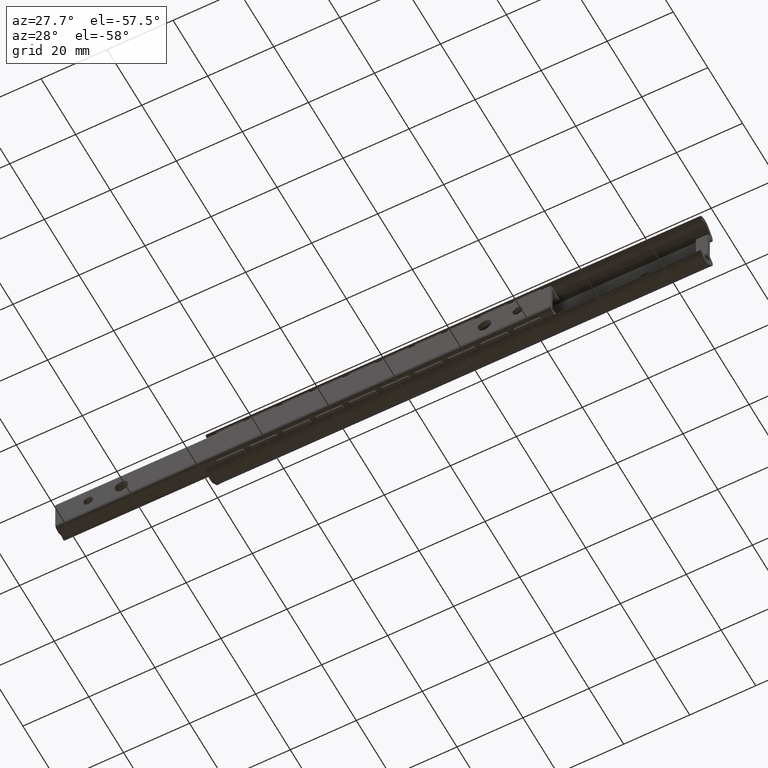
[diagram: clean part render]
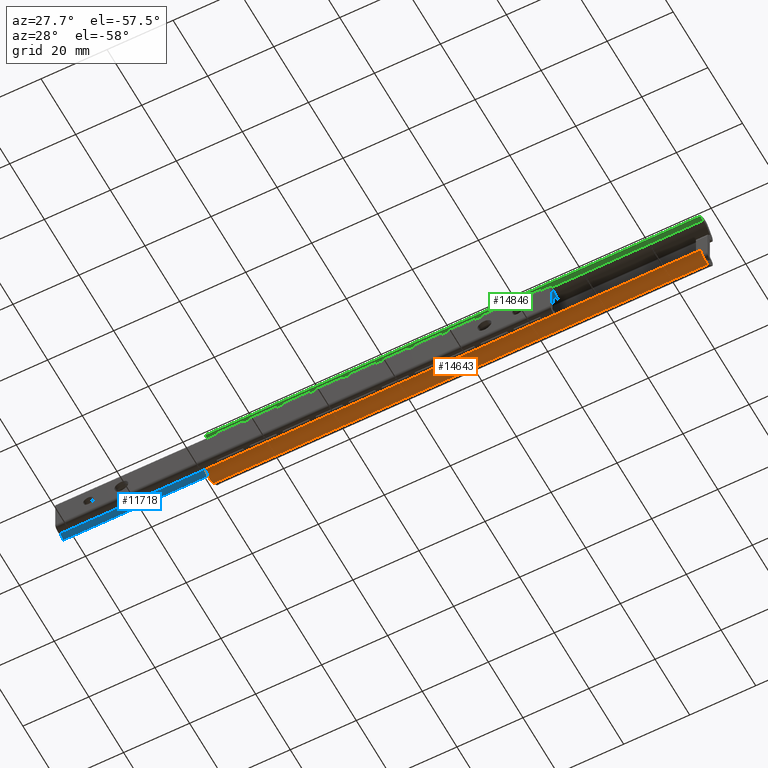
[diagram: same view with three faces highlighted in distinct colors, each labeled with its STEP entity id]
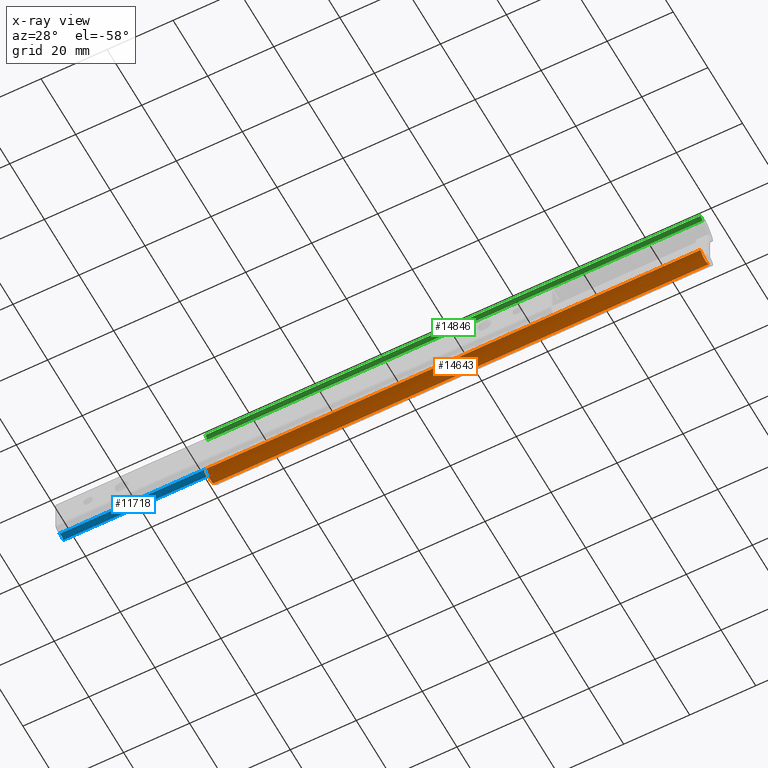
[diagram: x-ray of the same camera — body ghosted, the three highlighted faces saturated]
A machine part, auxiliary view with three faces highlighted in distinct colors.
The next image is the same camera in x-ray (body ghosted, the three faces saturated) — at least one of them is partly hidden behind the body in this view.
Their STEP definitions:

[orange] entity #14643 — the highlighted face is a freeform B-spline surface patch.
#12807=CARTESIAN_POINT('',(150.0,-7.078071239486619,-8.522037986978919));
#12808=VERTEX_POINT('',#12807);
#12814=CARTESIAN_POINT('',(150.0,-2.466980000000175,-9.201561000000000));
#12815=VERTEX_POINT('',#12814);
#12816=CARTESIAN_POINT('',(150.0,-7.078071239486623,-8.522037986978919));
#12817=CARTESIAN_POINT('',(150.000000000000060,-6.353743143967781,-9.759084982229698));
#12818=CARTESIAN_POINT('',(150.0,-4.935554901319296,-9.968079161169062));
#12819=CARTESIAN_POINT('',(150.000000000000060,-3.517366658670809,-10.177073340108425));
#12820=CARTESIAN_POINT('',(150.0,-2.466980000000175,-9.201561000000000));
#12828=(BOUNDED_CURVE()B_SPLINE_CURVE(2,(#12816,#12817,#12818,#12819,#12820),.UNSPECIFIED.,.F.,.U.)B_SPLINE_CURVE_WITH_KNOTS((3,2,3),(0.0,0.500000000000000,1.0),.UNSPECIFIED.)CURVE()GEOMETRIC_REPRESENTATION_ITEM()RATIONAL_B_SPLINE_CURVE((1.0,0.901581331480265,1.0,0.901581331480265,1.0))REPRESENTATION_ITEM(''));
#12829=EDGE_CURVE('',#12808,#12815,#12828,.T.);
#13671=CARTESIAN_POINT('',(0.0,-2.466980000000175,-9.201561000000000));
#13672=VERTEX_POINT('',#13671);
#13678=CARTESIAN_POINT('',(0.0,-7.078071239486619,-8.522037986978919));
#13679=VERTEX_POINT('',#13678);
#13680=CARTESIAN_POINT('',(0.0,-7.078071239486623,-8.522037986978919));
#13681=CARTESIAN_POINT('',(0.0,-6.353743143967781,-9.759084982229698));
#13682=CARTESIAN_POINT('',(0.0,-4.935554901319296,-9.968079161169062));
#13683=CARTESIAN_POINT('',(0.0,-3.517366658670809,-10.177073340108425));
#13684=CARTESIAN_POINT('',(0.0,-2.466980000000175,-9.201561000000000));
#13692=(BOUNDED_CURVE()B_SPLINE_CURVE(2,(#13680,#13681,#13682,#13683,#13684),.UNSPECIFIED.,.F.,.U.)B_SPLINE_CURVE_WITH_KNOTS((3,2,3),(0.0,0.500000000000000,1.0),.UNSPECIFIED.)CURVE()GEOMETRIC_REPRESENTATION_ITEM()RATIONAL_B_SPLINE_CURVE((1.0,0.901581331480265,1.0,0.901581331480265,1.0))REPRESENTATION_ITEM(''));
#13693=EDGE_CURVE('',#13679,#13672,#13692,.T.);
#14608=CARTESIAN_POINT('',(150.0,-7.078071239486619,-8.522037986978919));
#14609=CARTESIAN_POINT('',(0.0,-7.078071239486619,-8.522037986978919));
#14610=QUASI_UNIFORM_CURVE('',1,(#14608,#14609),.UNSPECIFIED.,.F.,.U.);
#14611=EDGE_CURVE('',#12808,#13679,#14610,.T.);
#14619=CARTESIAN_POINT('',(153.750000000000000,-7.128361483693322,-8.432666244155140));
#14620=CARTESIAN_POINT('',(-3.843750000000000,-7.128361483693322,-8.432666244155140));
#14621=CARTESIAN_POINT('',(153.750000000000000,-5.139968390697791,-12.112669090005582));
#14622=CARTESIAN_POINT('',(-3.843750000000000,-5.139968390697791,-12.112669090005582));
#14623=CARTESIAN_POINT('',(153.749999999999970,-2.304003409688435,-9.038025913272987));
#14624=CARTESIAN_POINT('',(-3.843750000000000,-2.304003409688435,-9.038025913272987));
#14632=(BOUNDED_SURFACE()B_SPLINE_SURFACE(1,2,((#14619,#14621,#14623),(#14620,#14622,#14624)),.UNSPECIFIED.,.F.,.F.,.U.)B_SPLINE_SURFACE_WITH_KNOTS((2,2),(3,3),(0.0,157.593750000000000),(0.0,6.149971916769982),.UNSPECIFIED.)GEOMETRIC_REPRESENTATION_ITEM()RATIONAL_B_SPLINE_SURFACE(((1.0,0.581021895955603,0.999362604717430),(1.0,0.581021895955603,0.999362604717430)))REPRESENTATION_ITEM('')SURFACE());
#14633=CARTESIAN_POINT('',(150.0,-2.466980000000175,-9.201561000000000));
#14634=CARTESIAN_POINT('',(0.0,-2.466980000000175,-9.201561000000000));
#14635=QUASI_UNIFORM_CURVE('',1,(#14633,#14634),.UNSPECIFIED.,.F.,.U.);
#14636=EDGE_CURVE('',#12815,#13672,#14635,.T.);
#14637=ORIENTED_EDGE('',*,*,#14636,.F.);
#14638=ORIENTED_EDGE('',*,*,#12829,.F.);
#14639=ORIENTED_EDGE('',*,*,#14611,.T.);
#14640=ORIENTED_EDGE('',*,*,#13693,.T.);
#14641=EDGE_LOOP('',(#14637,#14638,#14639,#14640));
#14642=FACE_OUTER_BOUND('',#14641,.T.);
#14643=ADVANCED_FACE('',(#14642),#14632,.T.);

[blue] entity #11718 — the highlighted face is a freeform B-spline surface patch.
#11327=CARTESIAN_POINT('',(-45.0,-3.360986249243195,-5.906695349265091));
#11328=VERTEX_POINT('',#11327);
#11334=CARTESIAN_POINT('',(-45.0,-5.520770942139200,-5.796694532959880));
#11335=VERTEX_POINT('',#11334);
#11336=CARTESIAN_POINT('',(-45.0,-3.360986249243200,-5.906695349265096));
#11337=CARTESIAN_POINT('',(-45.000000000000007,-4.389711933932812,-4.847075370420143));
#11338=CARTESIAN_POINT('',(-45.0,-5.520770942139206,-5.796694532959872));
#11346=(BOUNDED_CURVE()B_SPLINE_CURVE(2,(#11336,#11337,#11338),.UNSPECIFIED.,.F.,.U.)CURVE()GEOMETRIC_REPRESENTATION_ITEM()QUASI_UNIFORM_CURVE()RATIONAL_B_SPLINE_CURVE((1.0,0.732163559787559,1.0))REPRESENTATION_ITEM(''));
#11347=EDGE_CURVE('',#11328,#11335,#11346,.T.);
#11459=CARTESIAN_POINT('',(105.0,-5.520770559995840,-5.796694574426910));
#11460=VERTEX_POINT('',#11459);
#11476=CARTESIAN_POINT('',(105.0,-3.360986249243205,-5.906695349265091));
#11477=VERTEX_POINT('',#11476);
#11478=CARTESIAN_POINT('',(105.0,-3.360986249243205,-5.906695349265091));
#11479=CARTESIAN_POINT('',(105.0,-4.389711761106835,-4.847075548436372));
#11480=CARTESIAN_POINT('',(105.0,-5.520770559995840,-5.796694574426910));
#11488=(BOUNDED_CURVE()B_SPLINE_CURVE(2,(#11478,#11479,#11480),.UNSPECIFIED.,.F.,.U.)CURVE()GEOMETRIC_REPRESENTATION_ITEM()QUASI_UNIFORM_CURVE()RATIONAL_B_SPLINE_CURVE((1.0,0.732163616853390,1.0))REPRESENTATION_ITEM(''));
#11489=EDGE_CURVE('',#11477,#11460,#11488,.T.);
#11683=CARTESIAN_POINT('',(105.0,-3.360986249243205,-5.906695349265091));
#11684=CARTESIAN_POINT('',(-45.0,-3.360986249243195,-5.906695349265091));
#11685=QUASI_UNIFORM_CURVE('',1,(#11683,#11684),.UNSPECIFIED.,.F.,.U.);
#11686=EDGE_CURVE('',#11477,#11328,#11685,.T.);
#11694=CARTESIAN_POINT('',(108.750000000000000,-3.329876933734269,-5.939668112054416));
#11695=CARTESIAN_POINT('',(-48.843750000000007,-3.329876933734269,-5.939668112054416));
#11696=CARTESIAN_POINT('',(108.750000000000000,-4.428962981576579,-4.740909992686717));
#11697=CARTESIAN_POINT('',(-48.843750000000014,-4.428962981576579,-4.740909992686717));
#11698=CARTESIAN_POINT('',(108.749999999999960,-5.600803188930652,-5.868651850444940));
#11699=CARTESIAN_POINT('',(-48.843750000000007,-5.600803188930652,-5.868651850444940));
#11707=(BOUNDED_SURFACE()B_SPLINE_SURFACE(1,2,((#11694,#11696,#11698),(#11695,#11697,#11699)),.UNSPECIFIED.,.F.,.F.,.U.)B_SPLINE_SURFACE_WITH_KNOTS((2,2),(3,3),(0.0,157.593750000000000),(0.0,2.675327587565588),.UNSPECIFIED.)GEOMETRIC_REPRESENTATION_ITEM()RATIONAL_B_SPLINE_SURFACE(((1.0,0.696930894536311,0.995488778649072),(1.0,0.696930894536311,0.995488778649072)))REPRESENTATION_ITEM('')SURFACE());
#11708=CARTESIAN_POINT('',(105.0,-5.520770559995840,-5.796694574426910));
#11709=CARTESIAN_POINT('',(-45.0,-5.520770942139200,-5.796694532959880));
#11710=QUASI_UNIFORM_CURVE('',1,(#11708,#11709),.UNSPECIFIED.,.F.,.U.);
#11711=EDGE_CURVE('',#11460,#11335,#11710,.T.);
#11712=ORIENTED_EDGE('',*,*,#11711,.T.);
#11713=ORIENTED_EDGE('',*,*,#11347,.F.);
#11714=ORIENTED_EDGE('',*,*,#11686,.F.);
#11715=ORIENTED_EDGE('',*,*,#11489,.T.);
#11716=EDGE_LOOP('',(#11712,#11713,#11714,#11715));
#11717=FACE_OUTER_BOUND('',#11716,.T.);
#11718=ADVANCED_FACE('',(#11717),#11707,.F.);

[green] entity #14846 — the highlighted face is a freeform B-spline surface patch.
#12665=CARTESIAN_POINT('',(150.0,-5.943723854130909,7.672664890776260));
#12666=VERTEX_POINT('',#12665);
#12667=CARTESIAN_POINT('',(150.0,-7.078071239486619,8.522037986978919));
#12668=VERTEX_POINT('',#12667);
#12669=CARTESIAN_POINT('',(150.0,-5.943723854130909,7.672664890776260));
#12670=CARTESIAN_POINT('',(150.0,-7.078071239486619,8.522037986978919));
#12671=QUASI_UNIFORM_CURVE('',1,(#12669,#12670),.UNSPECIFIED.,.F.,.U.);
#12672=EDGE_CURVE('',#12666,#12668,#12671,.T.);
#13527=CARTESIAN_POINT('',(0.0,-5.943723854130909,7.672664890776260));
#13528=VERTEX_POINT('',#13527);
#13529=CARTESIAN_POINT('',(0.0,-7.078071239486619,8.522037986978919));
#13530=VERTEX_POINT('',#13529);
#13531=CARTESIAN_POINT('',(0.0,-5.943723854130909,7.672664890776260));
#13532=CARTESIAN_POINT('',(0.0,-7.078071239486619,8.522037986978919));
#13533=QUASI_UNIFORM_CURVE('',1,(#13531,#13532),.UNSPECIFIED.,.F.,.U.);
#13534=EDGE_CURVE('',#13528,#13530,#13533,.T.);
#14820=CARTESIAN_POINT('',(150.0,-7.078071239486619,8.522037986978919));
#14821=CARTESIAN_POINT('',(0.0,-7.078071239486619,8.522037986978919));
#14822=QUASI_UNIFORM_CURVE('',1,(#14820,#14821),.UNSPECIFIED.,.F.,.U.);
#14823=EDGE_CURVE('',#12668,#13530,#14822,.T.);
#14831=CARTESIAN_POINT('',(-7.492499709270897,-7.134731952021298,8.564464420487770));
#14832=CARTESIAN_POINT('',(-7.492499709270897,-5.887063171015943,7.630238671639632));
#14833=CARTESIAN_POINT('',(157.492503732584400,-7.134731952021298,8.564464420487770));
#14834=CARTESIAN_POINT('',(157.492503732584400,-5.887063171015943,7.630238671639632));
#14835=B_SPLINE_SURFACE_WITH_KNOTS('',1,1,((#14831,#14833),(#14832,#14834)),.UNSPECIFIED.,.F.,.F.,.U.,(2,2),(2,2),(0.041708217607439,0.958291692985594),(0.0,164.985003441855300),.UNSPECIFIED.);
#14836=CARTESIAN_POINT('',(150.0,-5.943723854130909,7.672664890776260));
#14837=CARTESIAN_POINT('',(0.0,-5.943723854130909,7.672664890776260));
#14838=QUASI_UNIFORM_CURVE('',1,(#14836,#14837),.UNSPECIFIED.,.F.,.U.);
#14839=EDGE_CURVE('',#12666,#13528,#14838,.T.);
#14840=ORIENTED_EDGE('',*,*,#14839,.F.);
#14841=ORIENTED_EDGE('',*,*,#12672,.T.);
#14842=ORIENTED_EDGE('',*,*,#14823,.T.);
#14843=ORIENTED_EDGE('',*,*,#13534,.F.);
#14844=EDGE_LOOP('',(#14840,#14841,#14842,#14843));
#14845=FACE_OUTER_BOUND('',#14844,.T.);
#14846=ADVANCED_FACE('',(#14845),#14835,.T.);